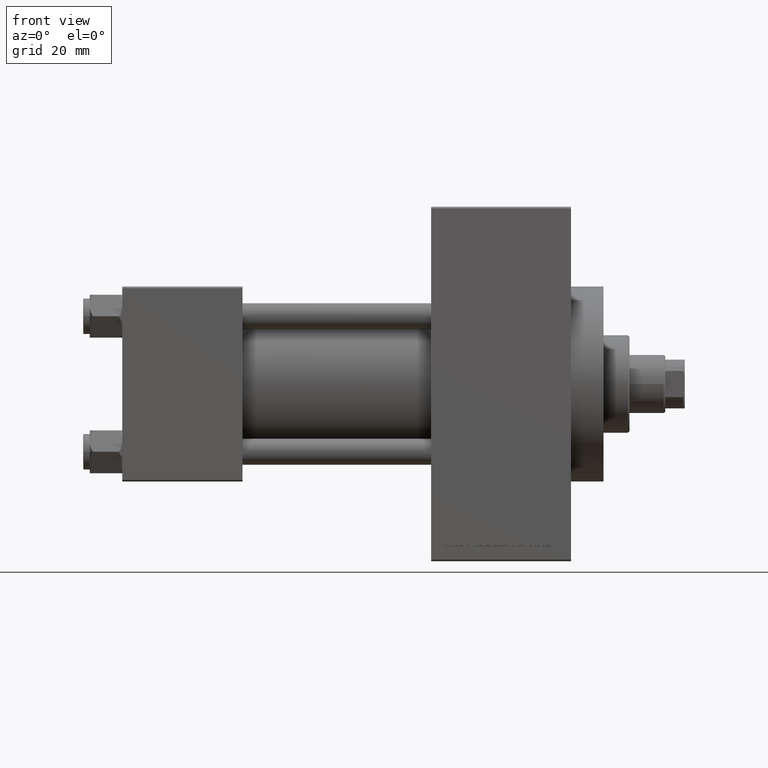
[diagram: clean part render]
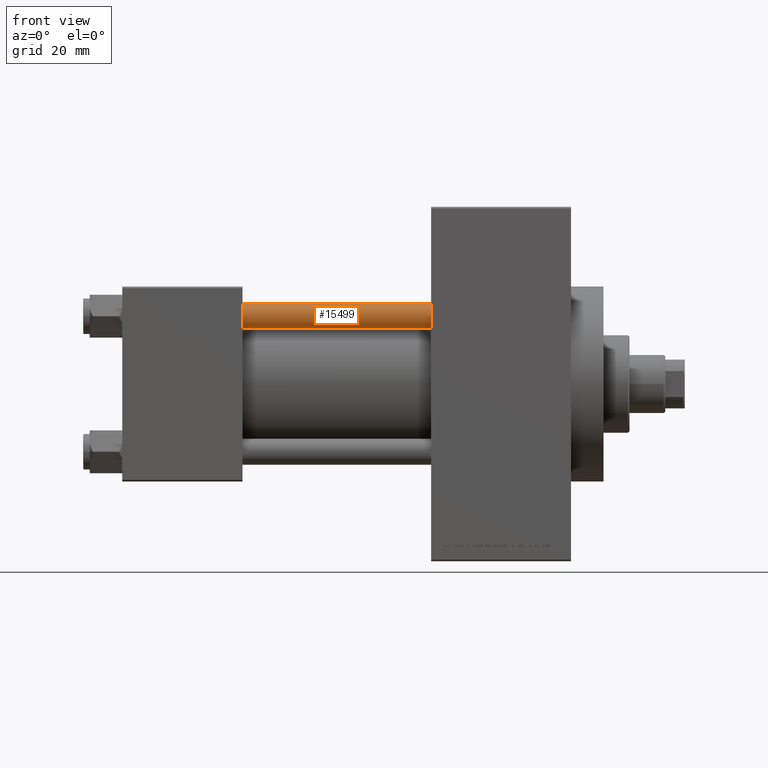
[diagram: same view with one face highlighted and labeled with its STEP entity id]
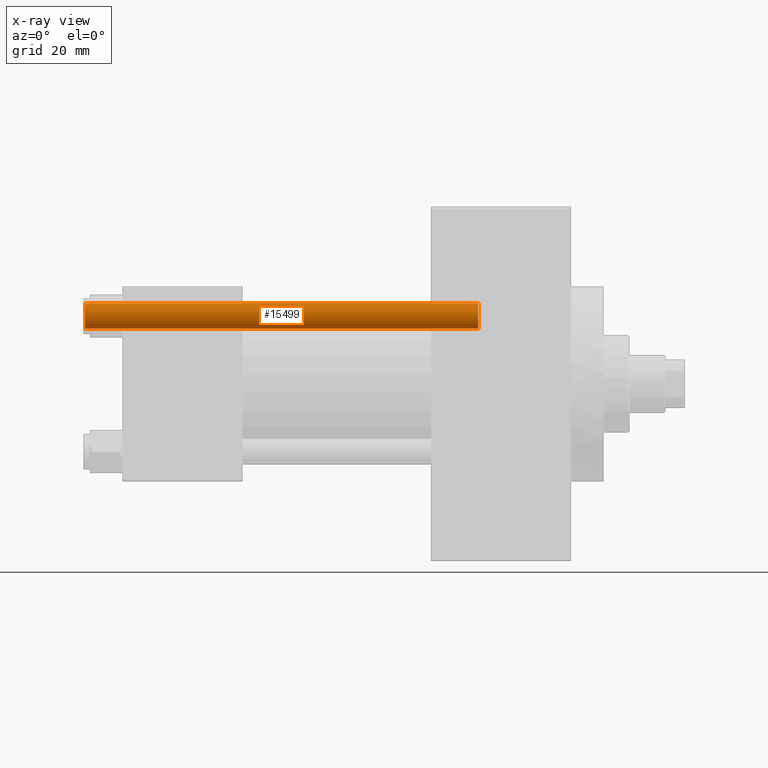
[diagram: x-ray of the same camera — body ghosted, the highlighted face saturated]
A machine part, front view. The second image highlights one B-rep face of the part: STEP entity #15499.
The next image is the same camera in x-ray: the body ghosted, the highlighted face saturated — about 0% of this face is hidden behind the body in this view.
In plain terms, the highlighted cylindrical surface (edge-blend (fillet) strip) has radius 4 mm, axis along (1, 0, 0).
Its self-contained STEP definition (entity closure, byte-faithful):
#2726 = CARTESIAN_POINT ( 'NONE',  ( 4.000000000000000000, 4.898587196589411843E-16, 121.5000000000000426 ) ) ;
#2958 = CARTESIAN_POINT ( 'NONE',  ( 4.000000000000000000, 4.898587196589411843E-16, 122.0000000000000000 ) ) ;
#5516 = CARTESIAN_POINT ( 'NONE',  ( -4.000000000000000000, 0.000000000000000000, 122.0000000000000000 ) ) ;
#6833 = VERTEX_POINT ( 'NONE', #45999 ) ;
#7896 = EDGE_LOOP ( 'NONE', ( #25828, #40425, #21588, #31864 ) ) ;
#9530 = DIRECTION ( 'NONE',  ( 1.000000000000000000, 0.000000000000000000, 0.000000000000000000 ) ) ;
#11337 = FACE_OUTER_BOUND ( 'NONE', #7896, .T. ) ;
#11426 = EDGE_CURVE ( 'NONE', #19103, #6833, #41561, .T. ) ;
#12908 = CARTESIAN_POINT ( 'NONE',  ( 0.000000000000000000, 0.000000000000000000, 0.5000000000000559552 ) ) ;
#13156 = DIRECTION ( 'NONE',  ( 1.000000000000000000, 0.000000000000000000, 0.000000000000000000 ) ) ;
#14056 = AXIS2_PLACEMENT_3D ( 'NONE', #12908, #47307, #13156 ) ;
#14424 = DIRECTION ( 'NONE',  ( -0.000000000000000000, -0.000000000000000000, -1.000000000000000000 ) ) ;
#14464 = CARTESIAN_POINT ( 'NONE',  ( -4.000000000000000000, 0.000000000000000000, 121.5000000000000426 ) ) ;
#15122 = VECTOR ( 'NONE', #20462, 1000.000000000000000 ) ;
#15499 = ADVANCED_FACE ( 'NONE', ( #11337 ), #22788, .T. ) ;
#19103 = VERTEX_POINT ( 'NONE', #2726 ) ;
#19295 = DIRECTION ( 'NONE',  ( -1.000000000000000000, 0.000000000000000000, 0.000000000000000000 ) ) ;
#19332 = AXIS2_PLACEMENT_3D ( 'NONE', #43154, #46898, #9530 ) ;
#19555 = CARTESIAN_POINT ( 'NONE',  ( -4.000000000000000000, 0.000000000000000000, 0.5000000000000559552 ) ) ;
#20462 = DIRECTION ( 'NONE',  ( -0.000000000000000000, -0.000000000000000000, -1.000000000000000000 ) ) ;
#21588 = ORIENTED_EDGE ( 'NONE', *, *, #33606, .T. ) ;
#22781 = CIRCLE ( 'NONE', #14056, 4.000000000000000000 ) ;
#22788 = CYLINDRICAL_SURFACE ( 'NONE', #44592, 4.000000000000000000 ) ;
#25828 = ORIENTED_EDGE ( 'NONE', *, *, #48454, .T. ) ;
#28695 = LINE ( 'NONE', #5516, #15122 ) ;
#30280 = CARTESIAN_POINT ( 'NONE',  ( 0.000000000000000000, 0.000000000000000000, 122.0000000000000000 ) ) ;
#30472 = CIRCLE ( 'NONE', #19332, 4.000000000000000000 ) ;
#30936 = VECTOR ( 'NONE', #14424, 1000.000000000000000 ) ;
#31864 = ORIENTED_EDGE ( 'NONE', *, *, #43492, .F. ) ;
#33606 = EDGE_CURVE ( 'NONE', #6833, #45767, #22781, .T. ) ;
#36978 = VERTEX_POINT ( 'NONE', #14464 ) ;
#40425 = ORIENTED_EDGE ( 'NONE', *, *, #11426, .T. ) ;
#41561 = LINE ( 'NONE', #2958, #30936 ) ;
#43154 = CARTESIAN_POINT ( 'NONE',  ( 0.000000000000000000, 0.000000000000000000, 121.5000000000000426 ) ) ;
#43492 = EDGE_CURVE ( 'NONE', #36978, #45767, #28695, .T. ) ;
#44592 = AXIS2_PLACEMENT_3D ( 'NONE', #30280, #45478, #19295 ) ;
#45478 = DIRECTION ( 'NONE',  ( -0.000000000000000000, -0.000000000000000000, -1.000000000000000000 ) ) ;
#45767 = VERTEX_POINT ( 'NONE', #19555 ) ;
#45999 = CARTESIAN_POINT ( 'NONE',  ( 4.000000000000000000, 4.898587196589411843E-16, 0.5000000000000559552 ) ) ;
#46898 = DIRECTION ( 'NONE',  ( 0.000000000000000000, 0.000000000000000000, -1.000000000000000000 ) ) ;
#47307 = DIRECTION ( 'NONE',  ( -0.000000000000000000, -0.000000000000000000, 1.000000000000000000 ) ) ;
#48454 = EDGE_CURVE ( 'NONE', #36978, #19103, #30472, .T. ) ;